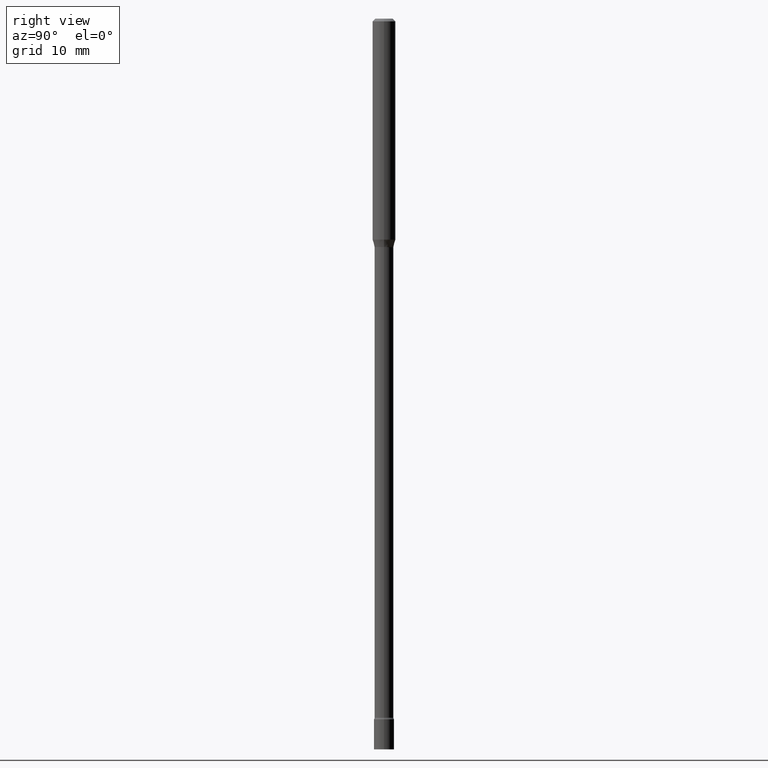
[diagram: clean part render]
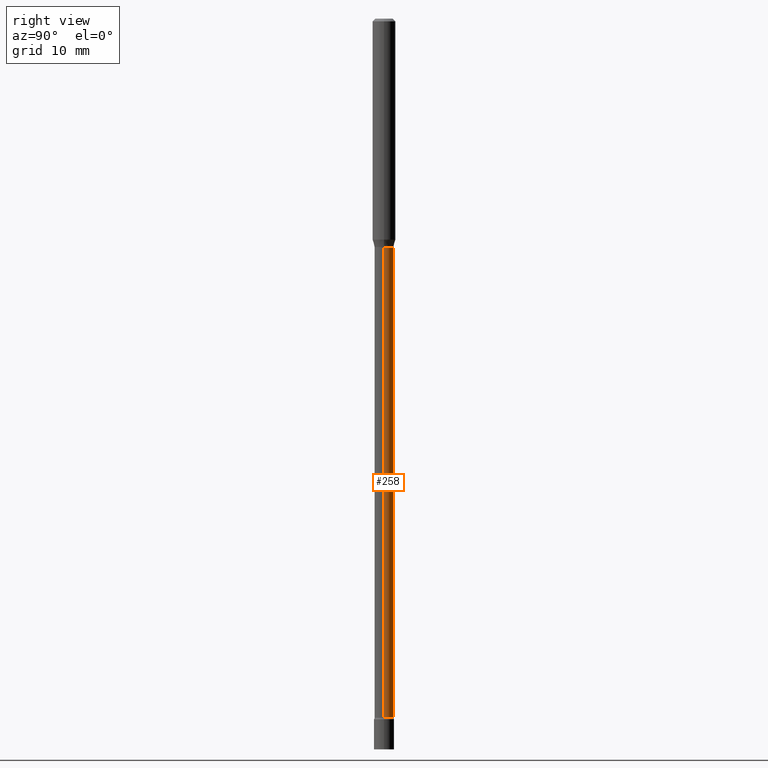
[diagram: same view with one face highlighted and labeled with its STEP entity id]
A machine part, right view. The second image highlights one B-rep face of the part: STEP entity #258.
In plain terms, the highlighted cylindrical surface (edge-blend (fillet) strip) has radius 1.3132 mm, axis along (-0, 0, 1).
Its self-contained STEP definition (entity closure, byte-faithful):
#4 = VECTOR ( 'NONE', #121, 39.37007874015748143 ) ;
#7 = CARTESIAN_POINT ( 'NONE',  ( 9.355418007508613870E-29, -1.335705747203898990E-14, -3.825613307291703347 ) ) ;
#43 = VERTEX_POINT ( 'NONE', #362 ) ;
#53 = DIRECTION ( 'NONE',  ( -2.445468806185136597E-29, 3.491481338843145583E-15, 1.000000000000000000 ) ) ;
#72 = ORIENTED_EDGE ( 'NONE', *, *, #229, .F. ) ;
#88 = AXIS2_PLACEMENT_3D ( 'NONE', #471, #130, #462 ) ;
#121 = DIRECTION ( 'NONE',  ( -2.445468806185136877E-29, 3.491481338843145188E-15, 1.000000000000000000 ) ) ;
#125 = DIRECTION ( 'NONE',  ( -2.445468806185136597E-29, 3.491481338843145583E-15, 1.000000000000000000 ) ) ;
#130 = DIRECTION ( 'NONE',  ( -2.445468806185136597E-29, 3.491481338843145583E-15, 1.000000000000000000 ) ) ;
#133 = LINE ( 'NONE', #465, #297 ) ;
#162 = CARTESIAN_POINT ( 'NONE',  ( -0.05170000000000028739, -1.299436965372321268E-14, -3.825613307291703347 ) ) ;
#172 = DIRECTION ( 'NONE',  ( -2.445468806185136877E-29, 3.491481338843145188E-15, 1.000000000000000000 ) ) ;
#175 = VERTEX_POINT ( 'NONE', #162 ) ;
#205 = CARTESIAN_POINT ( 'NONE',  ( 3.061665288873016119E-29, -4.371246607132010195E-15, -1.251974787463811190 ) ) ;
#209 = EDGE_CURVE ( 'NONE', #483, #175, #378, .T. ) ;
#229 = EDGE_CURVE ( 'NONE', #43, #441, #371, .T. ) ;
#241 = EDGE_CURVE ( 'NONE', #483, #43, #325, .T. ) ;
#254 = DIRECTION ( 'NONE',  ( 1.000000000000000000, -6.982962677686273021E-15, 0.000000000000000000 ) ) ;
#258 = ADVANCED_FACE ( 'NONE', ( #499 ), #375, .T. ) ;
#267 = AXIS2_PLACEMENT_3D ( 'NONE', #205, #125, #254 ) ;
#280 = ORIENTED_EDGE ( 'NONE', *, *, #482, .T. ) ;
#297 = VECTOR ( 'NONE', #172, 39.37007874015748143 ) ;
#299 = EDGE_LOOP ( 'NONE', ( #316, #280, #72, #358 ) ) ;
#307 = AXIS2_PLACEMENT_3D ( 'NONE', #7, #53, #416 ) ;
#316 = ORIENTED_EDGE ( 'NONE', *, *, #209, .T. ) ;
#325 = LINE ( 'NONE', #488, #4 ) ;
#358 = ORIENTED_EDGE ( 'NONE', *, *, #241, .F. ) ;
#362 = CARTESIAN_POINT ( 'NONE',  ( 0.05170000000000000984, -4.732265777568390544E-15, -1.251974787463811190 ) ) ;
#371 = CIRCLE ( 'NONE', #267, 0.05170000000000000984 ) ;
#375 = CYLINDRICAL_SURFACE ( 'NONE', #88, 0.05170000000000014168 ) ;
#378 = CIRCLE ( 'NONE', #307, 0.05170000000000028739 ) ;
#416 = DIRECTION ( 'NONE',  ( 1.000000000000000000, -6.982962677686254878E-15, 0.000000000000000000 ) ) ;
#441 = VERTEX_POINT ( 'NONE', #472 ) ;
#462 = DIRECTION ( 'NONE',  ( 1.000000000000000000, -6.982962677686266711E-15, 4.876176775795935793E-29 ) ) ;
#465 = CARTESIAN_POINT ( 'NONE',  ( -0.05170000000000014168, 3.673505943879728028E-16, -2.543089441661793474E-30 ) ) ;
#471 = CARTESIAN_POINT ( 'NONE',  ( 0.000000000000000000, 0.000000000000000000, 0.000000000000000000 ) ) ;
#472 = CARTESIAN_POINT ( 'NONE',  ( -0.05170000000000000984, -8.496801445197520588E-15, -1.251974787463811190 ) ) ;
#482 = EDGE_CURVE ( 'NONE', #175, #441, #133, .T. ) ;
#483 = VERTEX_POINT ( 'NONE', #508 ) ;
#488 = CARTESIAN_POINT ( 'NONE',  ( 0.05170000000000014168, -3.610191704363809896E-16, 2.520983393086505593E-30 ) ) ;
#499 = FACE_OUTER_BOUND ( 'NONE', #299, .T. ) ;
#508 = CARTESIAN_POINT ( 'NONE',  ( 0.05170000000000028739, -1.371807664247537104E-14, -3.825613307291703347 ) ) ;